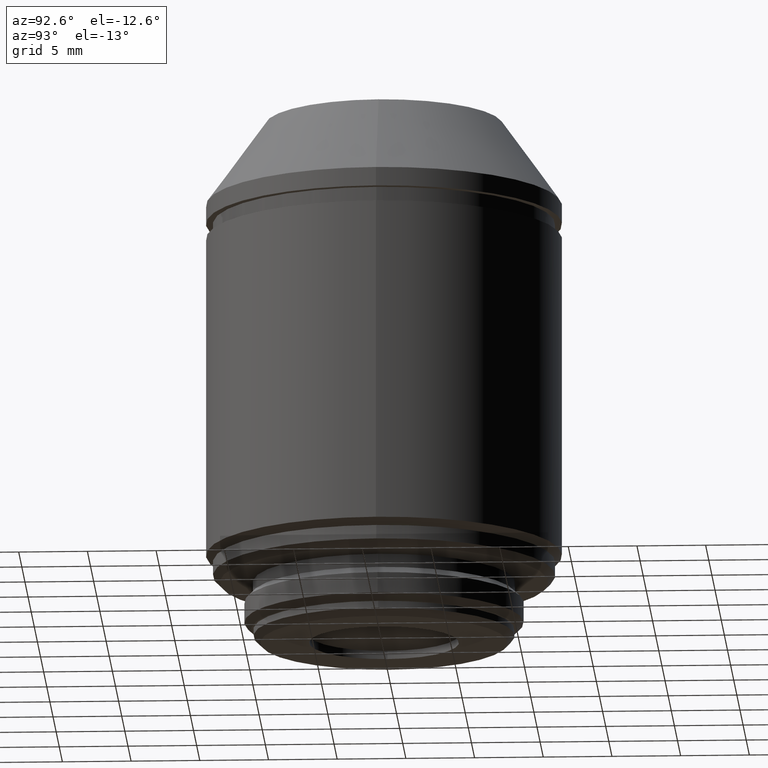
[diagram: clean part render]
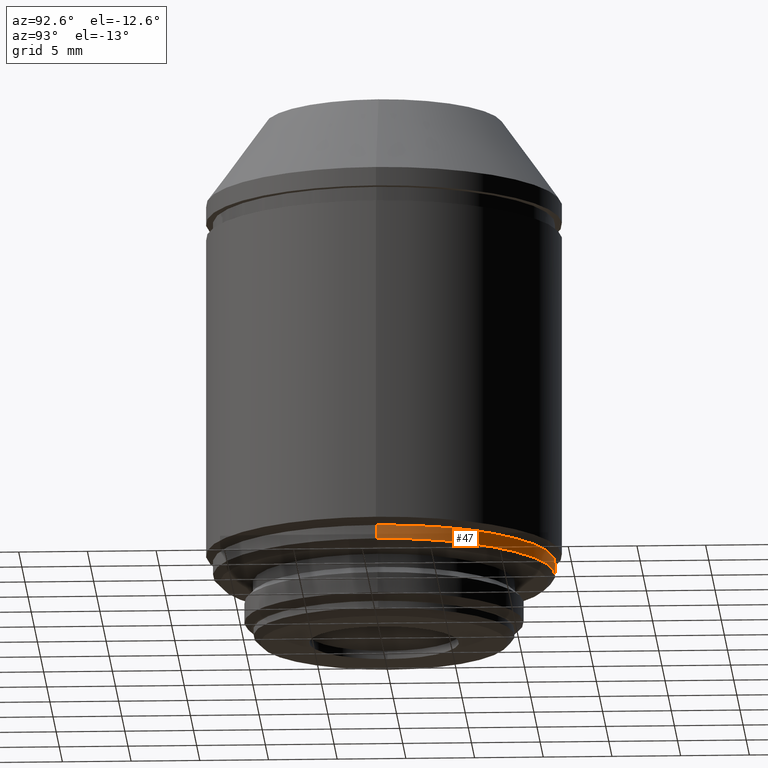
[diagram: same view with one face highlighted and labeled with its STEP entity id]
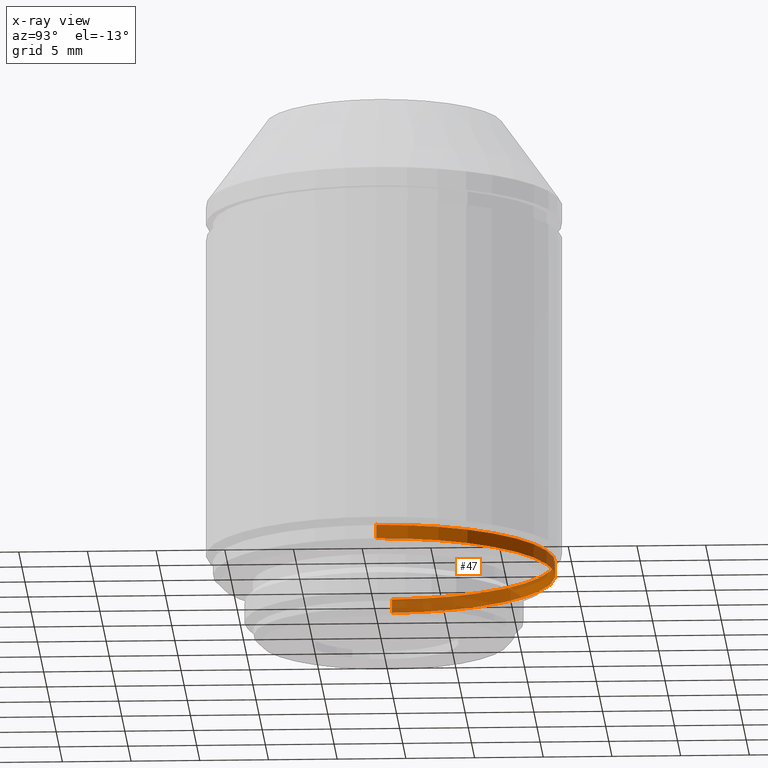
[diagram: x-ray of the same camera — body ghosted, the highlighted face saturated]
A machine part, auxiliary view. The second image highlights one B-rep face of the part: STEP entity #47.
The next image is the same camera in x-ray: the body ghosted, the highlighted face saturated — about 39% of this face is hidden behind the body in this view.
In plain terms, the highlighted cylindrical surface (partial cylindrical patch) has radius 12.45 mm, axis along (-0, -0, 1).
Its self-contained STEP definition (entity closure, byte-faithful):
#46 = FACE_OUTER_BOUND ( 'NONE', #724, .T. ) ;
#47 = ADVANCED_FACE ( 'NONE', ( #46 ), #463, .T. ) ;
#56 = DIRECTION ( 'NONE',  ( -0.000000000000000000, -0.000000000000000000, 1.000000000000000000 ) ) ;
#75 = AXIS2_PLACEMENT_3D ( 'NONE', #301, #56, #796 ) ;
#83 = EDGE_CURVE ( 'NONE', #861, #148, #693, .T. ) ;
#136 = AXIS2_PLACEMENT_3D ( 'NONE', #397, #565, #325 ) ;
#139 = CARTESIAN_POINT ( 'NONE',  ( 0.000000000000000000, 0.000000000000000000, 5.389999999999998792 ) ) ;
#141 = EDGE_CURVE ( 'NONE', #779, #148, #972, .T. ) ;
#148 = VERTEX_POINT ( 'NONE', #956 ) ;
#167 = ORIENTED_EDGE ( 'NONE', *, *, #684, .T. ) ;
#202 = ORIENTED_EDGE ( 'NONE', *, *, #141, .T. ) ;
#287 = DIRECTION ( 'NONE',  ( 1.000000000000000000, 0.000000000000000000, 0.000000000000000000 ) ) ;
#290 = DIRECTION ( 'NONE',  ( -0.000000000000000000, -0.000000000000000000, 1.000000000000000000 ) ) ;
#301 = CARTESIAN_POINT ( 'NONE',  ( 0.000000000000000000, 0.000000000000000000, 37.94999999999999574 ) ) ;
#309 = AXIS2_PLACEMENT_3D ( 'NONE', #139, #290, #287 ) ;
#325 = DIRECTION ( 'NONE',  ( 1.000000000000000000, 0.000000000000000000, 0.000000000000000000 ) ) ;
#374 = CARTESIAN_POINT ( 'NONE',  ( 12.44999999999999929, 0.000000000000000000, 37.94999999999999574 ) ) ;
#397 = CARTESIAN_POINT ( 'NONE',  ( 0.000000000000000000, 0.000000000000000000, 4.389999999999997904 ) ) ;
#423 = VECTOR ( 'NONE', #786, 1000.000000000000000 ) ;
#459 = CARTESIAN_POINT ( 'NONE',  ( -12.44999999999999929, 1.524685264938454646E-15, 37.94999999999999574 ) ) ;
#463 = CYLINDRICAL_SURFACE ( 'NONE', #75, 12.44999999999999929 ) ;
#483 = CARTESIAN_POINT ( 'NONE',  ( 12.45000000000000107, 0.000000000000000000, 5.389999999999998792 ) ) ;
#522 = EDGE_CURVE ( 'NONE', #936, #861, #1043, .T. ) ;
#565 = DIRECTION ( 'NONE',  ( -0.000000000000000000, -0.000000000000000000, 1.000000000000000000 ) ) ;
#588 = CARTESIAN_POINT ( 'NONE',  ( 12.44999999999999751, 0.000000000000000000, 4.389999999999997904 ) ) ;
#684 = EDGE_CURVE ( 'NONE', #936, #779, #797, .T. ) ;
#693 = CIRCLE ( 'NONE', #309, 12.45000000000000107 ) ;
#721 = ORIENTED_EDGE ( 'NONE', *, *, #83, .F. ) ;
#724 = EDGE_LOOP ( 'NONE', ( #167, #202, #721, #837 ) ) ;
#779 = VERTEX_POINT ( 'NONE', #996 ) ;
#786 = DIRECTION ( 'NONE',  ( -0.000000000000000000, -0.000000000000000000, 1.000000000000000000 ) ) ;
#796 = DIRECTION ( 'NONE',  ( 1.000000000000000000, 0.000000000000000000, 0.000000000000000000 ) ) ;
#797 = CIRCLE ( 'NONE', #136, 12.44999999999999751 ) ;
#837 = ORIENTED_EDGE ( 'NONE', *, *, #522, .F. ) ;
#861 = VERTEX_POINT ( 'NONE', #483 ) ;
#936 = VERTEX_POINT ( 'NONE', #588 ) ;
#950 = DIRECTION ( 'NONE',  ( -0.000000000000000000, -0.000000000000000000, 1.000000000000000000 ) ) ;
#956 = CARTESIAN_POINT ( 'NONE',  ( -12.45000000000000107, 1.555301434917138433E-15, 5.389999999999998792 ) ) ;
#972 = LINE ( 'NONE', #459, #423 ) ;
#996 = CARTESIAN_POINT ( 'NONE',  ( -12.44999999999999751, 1.524685264938454448E-15, 4.389999999999997904 ) ) ;
#1016 = VECTOR ( 'NONE', #950, 1000.000000000000000 ) ;
#1043 = LINE ( 'NONE', #374, #1016 ) ;